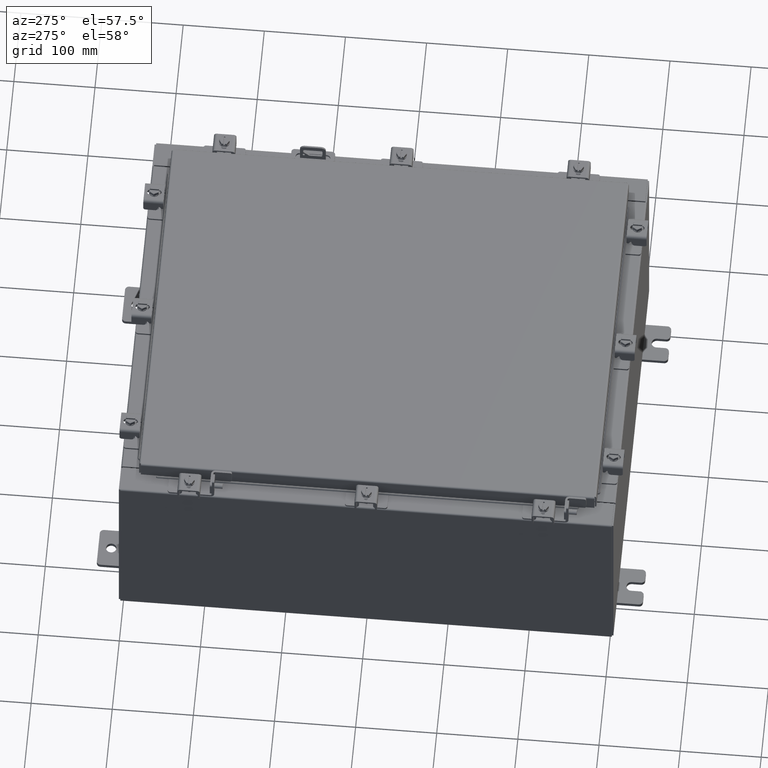
[diagram: clean part render]
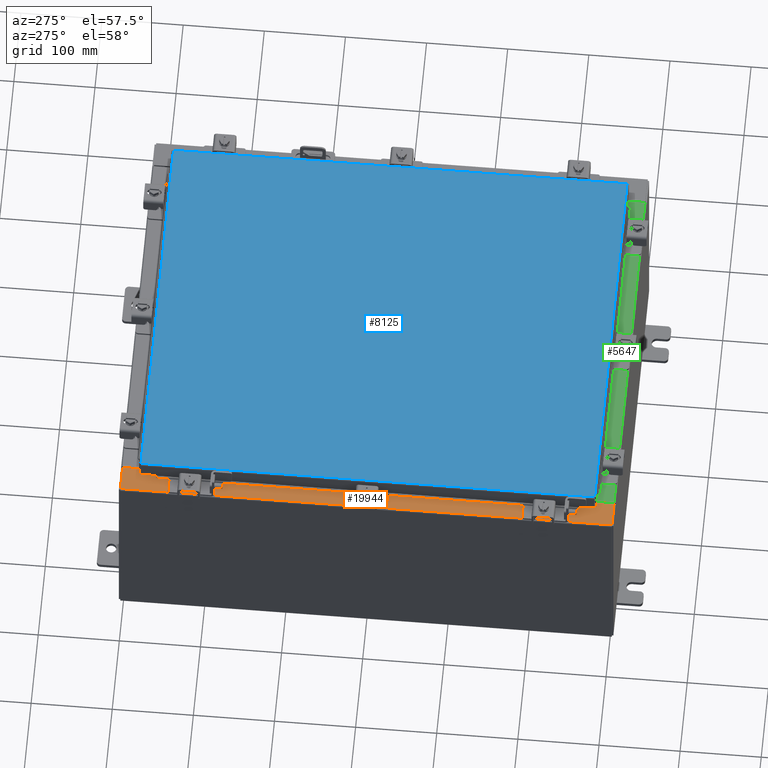
[diagram: same view with three faces highlighted in distinct colors, each labeled with its STEP entity id]
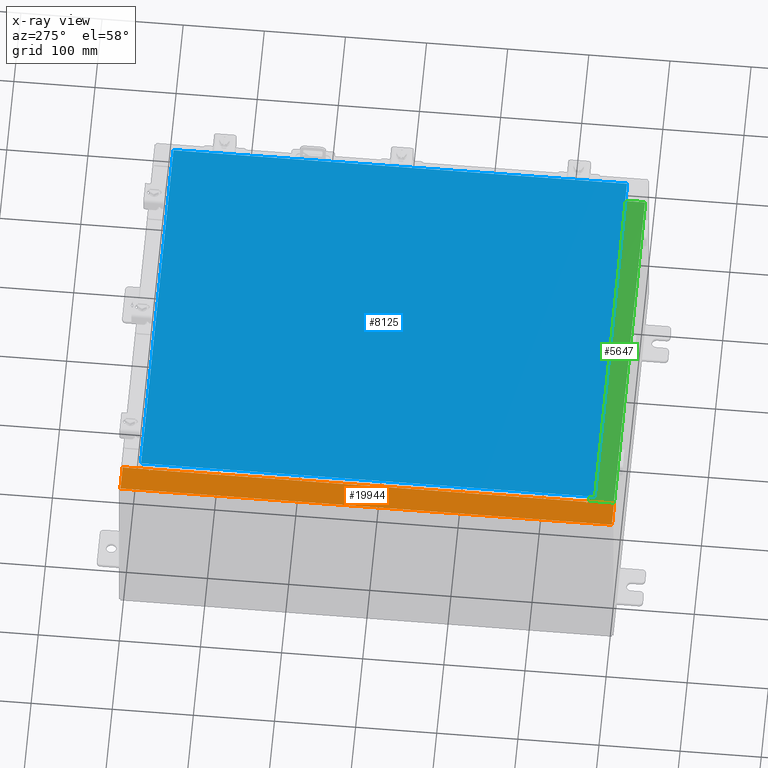
[diagram: x-ray of the same camera — body ghosted, the three highlighted faces saturated]
A machine part, auxiliary view with three faces highlighted in distinct colors.
The next image is the same camera in x-ray (body ghosted, the three faces saturated) — at least one of them is partly hidden behind the body in this view.
Their STEP definitions:

[orange] entity #19944 — the highlighted planar face has unit normal (0, 0, -1).
#202 = DIRECTION ( 'NONE',  ( 1.000000000000000000, 0.0000000000000000000, 0.0000000000000000000 ) ) ;
#279 = DIRECTION ( 'NONE',  ( -7.132762385546378400E-015, -0.0000000000000000000, 1.000000000000000000 ) ) ;
#398 = CARTESIAN_POINT ( 'NONE',  ( -8.750050000000037200, -10.63109999999999300, 9.925300000000005300 ) ) ;
#586 = VECTOR ( 'NONE', #12127, 39.37007874015748100 ) ;
#944 = VERTEX_POINT ( 'NONE', #11235 ) ;
#1574 = VECTOR ( 'NONE', #1603, 39.37007874015748100 ) ;
#1603 = DIRECTION ( 'NONE',  ( -0.0000000000000000000, 1.000000000000000000, -0.0000000000000000000 ) ) ;
#2037 = EDGE_CURVE ( 'NONE', #12149, #16002, #13176, .T. ) ;
#2040 = EDGE_CURVE ( 'NONE', #22303, #15326, #12079, .T. ) ;
#2252 = CARTESIAN_POINT ( 'NONE',  ( -7.105562016127552700E-014, 0.0000000000000000000, 9.925300000000067500 ) ) ;
#2534 = ORIENTED_EDGE ( 'NONE', *, *, #18254, .F. ) ;
#2910 = VECTOR ( 'NONE', #11903, 39.37007874015748100 ) ;
#3085 = EDGE_CURVE ( 'NONE', #8641, #11183, #22415, .T. ) ;
#3162 = FACE_OUTER_BOUND ( 'NONE', #4471, .T. ) ;
#3323 = EDGE_CURVE ( 'NONE', #9431, #9433, #6344, .T. ) ;
#3430 = CARTESIAN_POINT ( 'NONE',  ( -8.699700000000035500, 10.63110000000000200, 9.925300000000007100 ) ) ;
#3481 = LINE ( 'NONE', #13680, #2910 ) ;
#3497 = CARTESIAN_POINT ( 'NONE',  ( -8.712700000000035400, -10.59374999999999300, 9.925300000000007100 ) ) ;
#3721 = CARTESIAN_POINT ( 'NONE',  ( -8.750050000000037200, 10.61242500000000000, 9.925300000000007100 ) ) ;
#3779 = LINE ( 'NONE', #8810, #8992 ) ;
#4425 = VECTOR ( 'NONE', #18390, 39.37007874015748100 ) ;
#4471 = EDGE_LOOP ( 'NONE', ( #19643, #21523, #19425, #16802, #6366, #8309, #21118, #19070, #18292, #2534, #10442, #4672 ) ) ;
#4672 = ORIENTED_EDGE ( 'NONE', *, *, #2037, .F. ) ;
#4979 = LINE ( 'NONE', #3430, #18318 ) ;
#5324 = CARTESIAN_POINT ( 'NONE',  ( -8.699700000000035500, -11.92529999999999500, 9.925300000000007100 ) ) ;
#5484 = LINE ( 'NONE', #16335, #9026 ) ;
#5668 = VECTOR ( 'NONE', #18506, 39.37007874015748100 ) ;
#5863 = DIRECTION ( 'NONE',  ( 7.132762385546378400E-015, 0.0000000000000000000, -1.000000000000000000 ) ) ;
#6344 = LINE ( 'NONE', #20765, #586 ) ;
#6366 = ORIENTED_EDGE ( 'NONE', *, *, #15471, .T. ) ;
#6833 = CARTESIAN_POINT ( 'NONE',  ( -8.750050000000037200, 10.59375000000000000, 9.925300000000005300 ) ) ;
#7201 = CIRCLE ( 'NONE', #11393, 0.01867499999999949400 ) ;
#7233 = CARTESIAN_POINT ( 'NONE',  ( -8.712700000000035400, -10.59374999999999300, 9.925300000000007100 ) ) ;
#7485 = VECTOR ( 'NONE', #13602, 39.37007874015748100 ) ;
#7980 = CARTESIAN_POINT ( 'NONE',  ( -7.105562016127552700E-014, 11.92530000000000000, 9.925300000000067500 ) ) ;
#8145 = VECTOR ( 'NONE', #8379, 39.37007874015748100 ) ;
#8299 = CARTESIAN_POINT ( 'NONE',  ( -8.712700000000035400, 10.59375000000000200, 9.925300000000007100 ) ) ;
#8309 = ORIENTED_EDGE ( 'NONE', *, *, #3323, .T. ) ;
#8379 = DIRECTION ( 'NONE',  ( -0.0000000000000000000, -1.000000000000000000, -0.0000000000000000000 ) ) ;
#8641 = VERTEX_POINT ( 'NONE', #20897 ) ;
#8723 = CARTESIAN_POINT ( 'NONE',  ( -8.750050000000037200, -10.61242499999999300, 9.925300000000007100 ) ) ;
#8810 = CARTESIAN_POINT ( 'NONE',  ( -8.750050000000037200, 10.59375000000000000, 9.925300000000007100 ) ) ;
#8992 = VECTOR ( 'NONE', #20981, 39.37007874015748100 ) ;
#9026 = VECTOR ( 'NONE', #11112, 39.37007874015748100 ) ;
#9179 = CARTESIAN_POINT ( 'NONE',  ( -8.750050000000037200, 10.63109999999999800, 9.925300000000005300 ) ) ;
#9431 = VERTEX_POINT ( 'NONE', #5324 ) ;
#9433 = VERTEX_POINT ( 'NONE', #17507 ) ;
#9884 = CARTESIAN_POINT ( 'NONE',  ( -8.699700000000035500, -5.591807081111819100E-030, 9.925300000000007100 ) ) ;
#10232 = AXIS2_PLACEMENT_3D ( 'NONE', #2252, #5863, #18036 ) ;
#10390 = EDGE_CURVE ( 'NONE', #944, #11183, #15498, .T. ) ;
#10436 = DIRECTION ( 'NONE',  ( 1.000000000000000000, 0.0000000000000000000, 0.0000000000000000000 ) ) ;
#10442 = ORIENTED_EDGE ( 'NONE', *, *, #16623, .F. ) ;
#10878 = EDGE_CURVE ( 'NONE', #19453, #8641, #19578, .T. ) ;
#11112 = DIRECTION ( 'NONE',  ( 1.000000000000000000, 1.783190596386595000E-015, 7.132762385546378400E-015 ) ) ;
#11183 = VERTEX_POINT ( 'NONE', #18808 ) ;
#11235 = CARTESIAN_POINT ( 'NONE',  ( -9.912300000000035600, -11.92529999999999600, 9.925299999999998200 ) ) ;
#11393 = AXIS2_PLACEMENT_3D ( 'NONE', #8723, #20886, #10436 ) ;
#11903 = DIRECTION ( 'NONE',  ( 1.000000000000000000, 0.0000000000000000000, 0.0000000000000000000 ) ) ;
#12079 = LINE ( 'NONE', #7233, #7485 ) ;
#12127 = DIRECTION ( 'NONE',  ( -6.427586101948161900E-031, 1.000000000000000000, -4.584644437783652100E-045 ) ) ;
#12149 = VERTEX_POINT ( 'NONE', #9179 ) ;
#12729 = LINE ( 'NONE', #8299, #8145 ) ;
#12761 = PLANE ( 'NONE',  #10232 ) ;
#13176 = CIRCLE ( 'NONE', #19600, 0.01867499999999949400 ) ;
#13602 = DIRECTION ( 'NONE',  ( -1.000000000000000000, 0.0000000000000000000, 0.0000000000000000000 ) ) ;
#13680 = CARTESIAN_POINT ( 'NONE',  ( -8.750050000000037200, -10.63109999999999300, 9.925300000000007100 ) ) ;
#13809 = CARTESIAN_POINT ( 'NONE',  ( -9.912300000000035600, 11.92530000000000000, 9.925299999999998200 ) ) ;
#13878 = EDGE_CURVE ( 'NONE', #19453, #12149, #4979, .T. ) ;
#13880 = DIRECTION ( 'NONE',  ( -1.000000000000000000, -4.340572780399910900E-014, 0.0000000000000000000 ) ) ;
#15326 = VERTEX_POINT ( 'NONE', #15975 ) ;
#15391 = VERTEX_POINT ( 'NONE', #398 ) ;
#15471 = EDGE_CURVE ( 'NONE', #944, #9431, #5484, .T. ) ;
#15498 = LINE ( 'NONE', #13809, #1574 ) ;
#15975 = CARTESIAN_POINT ( 'NONE',  ( -8.750050000000037200, -10.59374999999999300, 9.925300000000005300 ) ) ;
#16002 = VERTEX_POINT ( 'NONE', #6833 ) ;
#16335 = CARTESIAN_POINT ( 'NONE',  ( -4.979053734218649800E-014, -11.92529999999998000, 9.925300000000067500 ) ) ;
#16398 = CARTESIAN_POINT ( 'NONE',  ( -8.712700000000035400, 10.59375000000000000, 9.925300000000007100 ) ) ;
#16623 = EDGE_CURVE ( 'NONE', #16002, #21873, #3779, .T. ) ;
#16802 = ORIENTED_EDGE ( 'NONE', *, *, #10390, .F. ) ;
#17507 = CARTESIAN_POINT ( 'NONE',  ( -8.699700000000035500, -10.63109999999999300, 9.925300000000007100 ) ) ;
#18036 = DIRECTION ( 'NONE',  ( -1.000000000000000000, 0.0000000000000000000, -7.132762385546378400E-015 ) ) ;
#18254 = EDGE_CURVE ( 'NONE', #21873, #22303, #12729, .T. ) ;
#18279 = EDGE_CURVE ( 'NONE', #15391, #9433, #3481, .T. ) ;
#18292 = ORIENTED_EDGE ( 'NONE', *, *, #2040, .F. ) ;
#18318 = VECTOR ( 'NONE', #13880, 39.37007874015748100 ) ;
#18390 = DIRECTION ( 'NONE',  ( -1.000000000000000000, -1.633973368572597200E-031, -7.132762385546378400E-015 ) ) ;
#18506 = DIRECTION ( 'NONE',  ( -6.427586101948161900E-031, 1.000000000000000000, -4.584644437783652100E-045 ) ) ;
#18808 = CARTESIAN_POINT ( 'NONE',  ( -9.912300000000035600, 11.92530000000000000, 9.925299999999998200 ) ) ;
#19070 = ORIENTED_EDGE ( 'NONE', *, *, #22261, .F. ) ;
#19425 = ORIENTED_EDGE ( 'NONE', *, *, #3085, .T. ) ;
#19453 = VERTEX_POINT ( 'NONE', #21927 ) ;
#19578 = LINE ( 'NONE', #9884, #5668 ) ;
#19600 = AXIS2_PLACEMENT_3D ( 'NONE', #3721, #279, #202 ) ;
#19643 = ORIENTED_EDGE ( 'NONE', *, *, #13878, .F. ) ;
#19944 = ADVANCED_FACE ( 'NONE', ( #3162 ), #12761, .F. ) ;
#20765 = CARTESIAN_POINT ( 'NONE',  ( -8.699700000000035500, -5.591807081111819100E-030, 9.925300000000007100 ) ) ;
#20886 = DIRECTION ( 'NONE',  ( -7.132762385546378400E-015, -0.0000000000000000000, 1.000000000000000000 ) ) ;
#20897 = CARTESIAN_POINT ( 'NONE',  ( -8.699700000000035500, 11.92530000000000000, 9.925300000000007100 ) ) ;
#20981 = DIRECTION ( 'NONE',  ( 1.000000000000000000, 0.0000000000000000000, 0.0000000000000000000 ) ) ;
#21118 = ORIENTED_EDGE ( 'NONE', *, *, #18279, .F. ) ;
#21523 = ORIENTED_EDGE ( 'NONE', *, *, #10878, .T. ) ;
#21873 = VERTEX_POINT ( 'NONE', #16398 ) ;
#21927 = CARTESIAN_POINT ( 'NONE',  ( -8.699700000000035500, 10.63110000000000200, 9.925300000000007100 ) ) ;
#22261 = EDGE_CURVE ( 'NONE', #15326, #15391, #7201, .T. ) ;
#22303 = VERTEX_POINT ( 'NONE', #3497 ) ;
#22415 = LINE ( 'NONE', #7980, #4425 ) ;

[blue] entity #8125 — the highlighted planar face has unit normal (0, 0, -1).
#329 = PLANE ( 'NONE',  #8014 ) ;
#358 = LINE ( 'NONE', #16897, #22433 ) ;
#600 = EDGE_CURVE ( 'NONE', #8267, #4235, #22357, .T. ) ;
#928 = ORIENTED_EDGE ( 'NONE', *, *, #600, .T. ) ;
#2073 = DIRECTION ( 'NONE',  ( -1.000000000000000000, 0.0000000000000000000, -0.0000000000000000000 ) ) ;
#2241 = LINE ( 'NONE', #11115, #20252 ) ;
#2429 = DIRECTION ( 'NONE',  ( 0.0000000000000000000, 1.000000000000000000, 0.0000000000000000000 ) ) ;
#2494 = EDGE_CURVE ( 'NONE', #4235, #13681, #358, .T. ) ;
#4123 = EDGE_CURVE ( 'NONE', #17533, #8267, #15870, .T. ) ;
#4235 = VERTEX_POINT ( 'NONE', #15900 ) ;
#4467 = DIRECTION ( 'NONE',  ( 1.000000000000000000, -0.0000000000000000000, -0.0000000000000000000 ) ) ;
#5538 = CARTESIAN_POINT ( 'NONE',  ( 0.0000000000000000000, 0.0000000000000000000, 0.0000000000000000000 ) ) ;
#8014 = AXIS2_PLACEMENT_3D ( 'NONE', #5538, #12504, #2073 ) ;
#8125 = ADVANCED_FACE ( 'NONE', ( #12754 ), #329, .F. ) ;
#8267 = VERTEX_POINT ( 'NONE', #9389 ) ;
#8365 = EDGE_LOOP ( 'NONE', ( #10092, #11938, #20344, #928 ) ) ;
#8690 = DIRECTION ( 'NONE',  ( -1.000000000000000000, -0.0000000000000000000, -0.0000000000000000000 ) ) ;
#9389 = CARTESIAN_POINT ( 'NONE',  ( -9.006300000000001300, 11.00630000000000100, 0.0000000000000000000 ) ) ;
#9908 = CARTESIAN_POINT ( 'NONE',  ( 9.006299999999997800, -11.00629999999999600, 0.0000000000000000000 ) ) ;
#10092 = ORIENTED_EDGE ( 'NONE', *, *, #2494, .T. ) ;
#10209 = CARTESIAN_POINT ( 'NONE',  ( 9.006299999999997800, 11.00630000000000100, -2.185478394931410600E-015 ) ) ;
#11115 = CARTESIAN_POINT ( 'NONE',  ( 9.006299999999997800, -11.00629999999999600, 0.0000000000000000000 ) ) ;
#11938 = ORIENTED_EDGE ( 'NONE', *, *, #13456, .T. ) ;
#12504 = DIRECTION ( 'NONE',  ( 0.0000000000000000000, 0.0000000000000000000, -1.000000000000000000 ) ) ;
#12754 = FACE_OUTER_BOUND ( 'NONE', #8365, .T. ) ;
#13456 = EDGE_CURVE ( 'NONE', #13681, #17533, #2241, .T. ) ;
#13681 = VERTEX_POINT ( 'NONE', #9908 ) ;
#14762 = DIRECTION ( 'NONE',  ( 0.0000000000000000000, -1.000000000000000000, 0.0000000000000000000 ) ) ;
#15317 = VECTOR ( 'NONE', #8690, 39.37007874015748100 ) ;
#15870 = LINE ( 'NONE', #17341, #15317 ) ;
#15900 = CARTESIAN_POINT ( 'NONE',  ( -9.006300000000001300, -11.00629999999999600, 0.0000000000000000000 ) ) ;
#16836 = CARTESIAN_POINT ( 'NONE',  ( -9.006300000000001300, 11.00630000000000100, 0.0000000000000000000 ) ) ;
#16897 = CARTESIAN_POINT ( 'NONE',  ( -9.006300000000001300, -11.00629999999999600, 0.0000000000000000000 ) ) ;
#17341 = CARTESIAN_POINT ( 'NONE',  ( 9.006299999999997800, 11.00630000000000100, -2.185478394931410600E-015 ) ) ;
#17533 = VERTEX_POINT ( 'NONE', #10209 ) ;
#17735 = VECTOR ( 'NONE', #14762, 39.37007874015748100 ) ;
#20252 = VECTOR ( 'NONE', #2429, 39.37007874015748100 ) ;
#20344 = ORIENTED_EDGE ( 'NONE', *, *, #4123, .T. ) ;
#22357 = LINE ( 'NONE', #16836, #17735 ) ;
#22433 = VECTOR ( 'NONE', #4467, 39.37007874015748100 ) ;

[green] entity #5647 — the highlighted planar face has unit normal (-0, -0, 1).
#311 = LINE ( 'NONE', #694, #22388 ) ;
#694 = CARTESIAN_POINT ( 'NONE',  ( 8.637200000000000000, -1.287299999999999900, 5.000000000000003600 ) ) ;
#1731 = DIRECTION ( 'NONE',  ( -1.000000000000000000, -6.325772226333218300E-017, 2.256011509776178200E-031 ) ) ;
#2369 = LINE ( 'NONE', #10523, #15773 ) ;
#2440 = DIRECTION ( 'NONE',  ( -1.000000000000000000, 0.0000000000000000000, 0.0000000000000000000 ) ) ;
#2936 = VECTOR ( 'NONE', #5612, 39.37007874015748100 ) ;
#3592 = DIRECTION ( 'NONE',  ( -0.0000000000000000000, -1.000000000000000000, 3.566381192773190000E-015 ) ) ;
#4456 = PLANE ( 'NONE',  #13052 ) ;
#4792 = VERTEX_POINT ( 'NONE', #5333 ) ;
#5333 = CARTESIAN_POINT ( 'NONE',  ( -8.637200000000000000, -1.287299999999999200, 5.000000000000004400 ) ) ;
#5612 = DIRECTION ( 'NONE',  ( -0.0000000000000000000, 1.000000000000000000, -3.566381192773190000E-015 ) ) ;
#5647 = ADVANCED_FACE ( 'NONE', ( #21503 ), #4456, .T. ) ;
#5682 = CARTESIAN_POINT ( 'NONE',  ( -8.637200000000000000, -0.07469999999999973900, 5.000000000000000000 ) ) ;
#6109 = EDGE_CURVE ( 'NONE', #8315, #4792, #311, .T. ) ;
#8168 = EDGE_CURVE ( 'NONE', #4792, #12681, #20974, .T. ) ;
#8315 = VERTEX_POINT ( 'NONE', #19983 ) ;
#8700 = EDGE_CURVE ( 'NONE', #18834, #8315, #2369, .T. ) ;
#8775 = CARTESIAN_POINT ( 'NONE',  ( -8.637200000000000000, -0.08770000000000081900, 5.000000000000000000 ) ) ;
#9721 = DIRECTION ( 'NONE',  ( 0.0000000000000000000, 3.566381192773190000E-015, 1.000000000000000000 ) ) ;
#10523 = CARTESIAN_POINT ( 'NONE',  ( 8.637200000000000000, -1.300299999999999800, 5.000000000000004400 ) ) ;
#12681 = VERTEX_POINT ( 'NONE', #8775 ) ;
#13052 = AXIS2_PLACEMENT_3D ( 'NONE', #18394, #9721, #21889 ) ;
#13800 = ORIENTED_EDGE ( 'NONE', *, *, #8168, .F. ) ;
#13944 = CARTESIAN_POINT ( 'NONE',  ( 5.547702242495411600E-018, -0.08770000000000081900, 5.000000000000000000 ) ) ;
#14799 = VECTOR ( 'NONE', #1731, 39.37007874015748100 ) ;
#15773 = VECTOR ( 'NONE', #3592, 39.37007874015748100 ) ;
#18394 = CARTESIAN_POINT ( 'NONE',  ( 0.0000000000000000000, 1.782631094477737600E-014, 5.000000000000000000 ) ) ;
#18834 = VERTEX_POINT ( 'NONE', #21869 ) ;
#19107 = ORIENTED_EDGE ( 'NONE', *, *, #8700, .F. ) ;
#19471 = LINE ( 'NONE', #13944, #14799 ) ;
#19983 = CARTESIAN_POINT ( 'NONE',  ( 8.637200000000000000, -1.287299999999999900, 5.000000000000004400 ) ) ;
#20974 = LINE ( 'NONE', #5682, #2936 ) ;
#21503 = FACE_OUTER_BOUND ( 'NONE', #22326, .T. ) ;
#21559 = ORIENTED_EDGE ( 'NONE', *, *, #22314, .T. ) ;
#21869 = CARTESIAN_POINT ( 'NONE',  ( 8.637200000000000000, -0.08770000000000047200, 5.000000000000000000 ) ) ;
#21889 = DIRECTION ( 'NONE',  ( 0.0000000000000000000, -1.000000000000000000, 3.566381192773190000E-015 ) ) ;
#21937 = ORIENTED_EDGE ( 'NONE', *, *, #6109, .F. ) ;
#22314 = EDGE_CURVE ( 'NONE', #18834, #12681, #19471, .T. ) ;
#22326 = EDGE_LOOP ( 'NONE', ( #13800, #21937, #19107, #21559 ) ) ;
#22388 = VECTOR ( 'NONE', #2440, 39.37007874015748100 ) ;